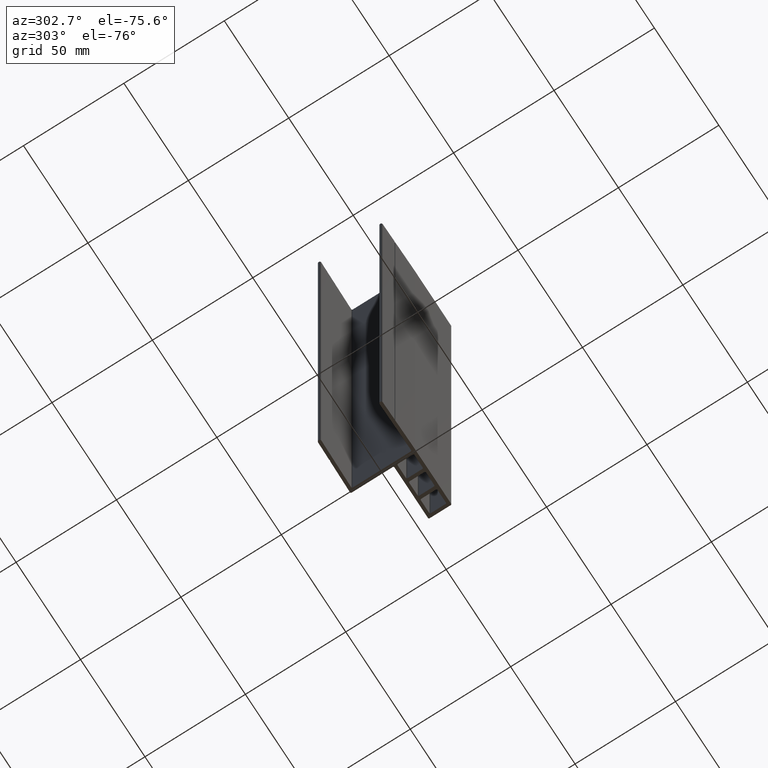
[diagram: clean part render]
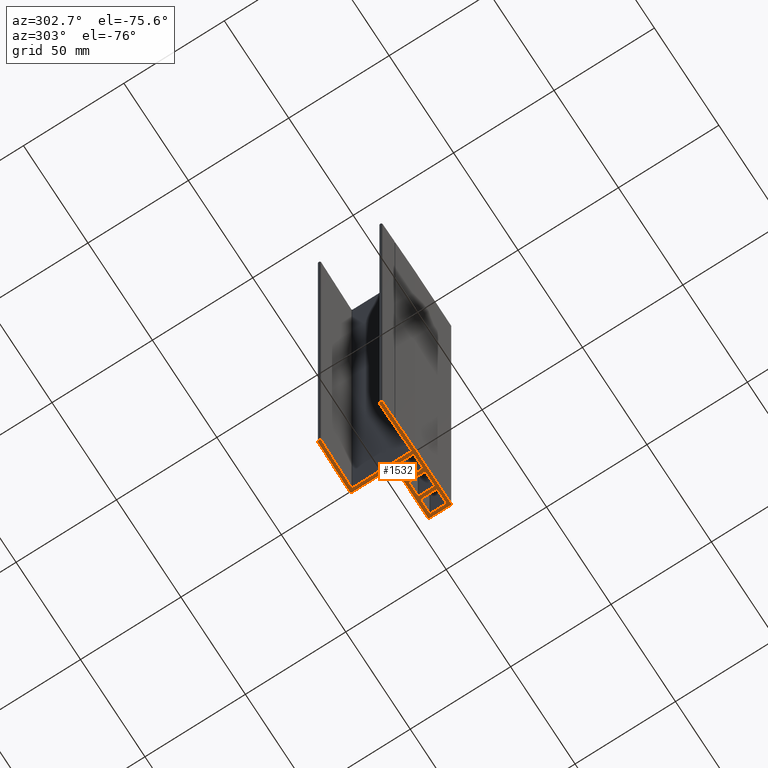
[diagram: same view with one face highlighted and labeled with its STEP entity id]
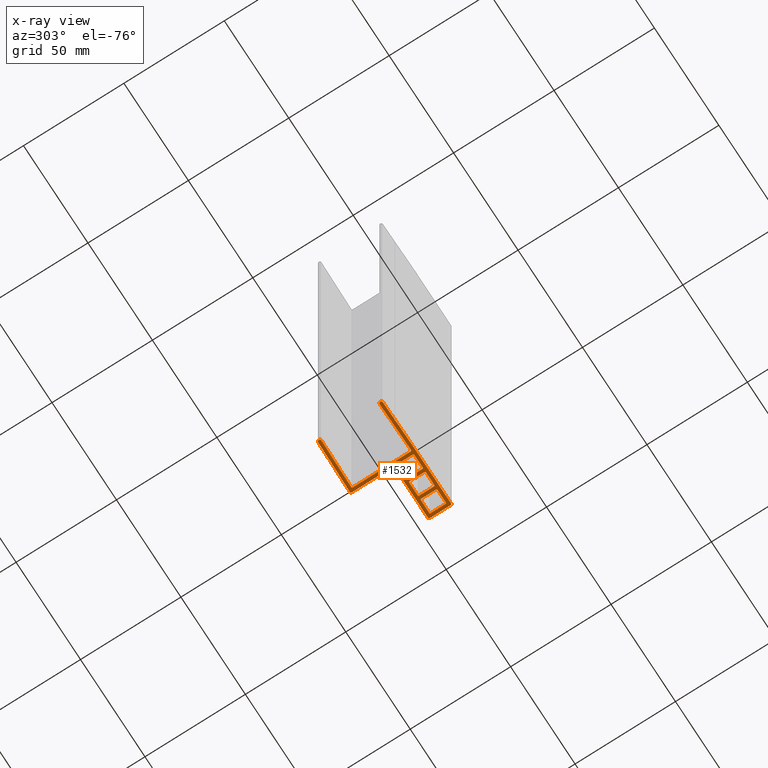
[diagram: x-ray of the same camera — body ghosted, the highlighted face saturated]
A machine part, auxiliary view. The second image highlights one B-rep face of the part: STEP entity #1532.
The next image is the same camera in x-ray: the body ghosted, the highlighted face saturated — about 0% of this face is hidden behind the body in this view.
In plain terms, the highlighted planar face has unit normal (-0, 0, -1).
Its self-contained STEP definition (entity closure, byte-faithful):
#4 = AXIS2_PLACEMENT_3D ( 'NONE', #1460, #150, #642 ) ;
#7 = CARTESIAN_POINT ( 'NONE',  ( -15.28087924239067300, -16.25591553212179000, -150.0000000000000000 ) ) ;
#18 = DIRECTION ( 'NONE',  ( -0.7238706650599833200, -0.6899356928479765100, 0.0000000000000000000 ) ) ;
#20 = CARTESIAN_POINT ( 'NONE',  ( -15.28087924239068400, 16.25591553212178700, -150.0000000000000000 ) ) ;
#24 = AXIS2_PLACEMENT_3D ( 'NONE', #1817, #1814, #1812 ) ;
#25 = LINE ( 'NONE', #55, #900 ) ;
#26 = CIRCLE ( 'NONE', #664, 0.7999999999999986000 ) ;
#27 = ORIENTED_EDGE ( 'NONE', *, *, #392, .T. ) ;
#28 = EDGE_CURVE ( 'NONE', #1199, #674, #328, .T. ) ;
#37 = LINE ( 'NONE', #1242, #842 ) ;
#42 = ORIENTED_EDGE ( 'NONE', *, *, #1365, .F. ) ;
#49 = AXIS2_PLACEMENT_3D ( 'NONE', #1520, #1514, #1507 ) ;
#52 = AXIS2_PLACEMENT_3D ( 'NONE', #119, #100, #138 ) ;
#54 = VERTEX_POINT ( 'NONE', #432 ) ;
#55 = CARTESIAN_POINT ( 'NONE',  ( -24.22570238034338500, -16.11279836191450700, -150.0000000000000000 ) ) ;
#57 = AXIS2_PLACEMENT_3D ( 'NONE', #1881, #1669, #1641 ) ;
#60 = VECTOR ( 'NONE', #879, 1000.000000000000000 ) ;
#62 = VECTOR ( 'NONE', #18, 1000.000000000000000 ) ;
#70 = DIRECTION ( 'NONE',  ( 0.9998720245707583000, -0.01599795239313189100, 0.0000000000000000000 ) ) ;
#69 = CIRCLE ( 'NONE', #1624, 0.4999999999999991700 ) ;
#89 = FACE_BOUND ( 'NONE', #1643, .T. ) ;
#91 = CARTESIAN_POINT ( 'NONE',  ( -25.01279836191450200, -15.29989761965661000, -150.0000000000000000 ) ) ;
#94 = AXIS2_PLACEMENT_3D ( 'NONE', #871, #852, #244 ) ;
#100 = DIRECTION ( 'NONE',  ( -0.0000000000000000000, -0.0000000000000000000, -1.000000000000000000 ) ) ;
#105 = VERTEX_POINT ( 'NONE', #116 ) ;
#116 = CARTESIAN_POINT ( 'NONE',  ( -14.78087924239068400, 16.26391553212179300, -150.0000000000000000 ) ) ;
#119 = CARTESIAN_POINT ( 'NONE',  ( -0.5000000000000053300, 14.39193600409547700, -150.0000000000000000 ) ) ;
#128 = LINE ( 'NONE', #1201, #681 ) ;
#133 = VERTEX_POINT ( 'NONE', #424 ) ;
#134 = EDGE_CURVE ( 'NONE', #272, #54, #180, .T. ) ;
#136 = VECTOR ( 'NONE', #310, 1000.000000000000000 ) ;
#137 = ORIENTED_EDGE ( 'NONE', *, *, #1631, .F. ) ;
#138 = DIRECTION ( 'NONE',  ( 1.000000000000000000, 0.0000000000000000000, 0.0000000000000000000 ) ) ;
#150 = DIRECTION ( 'NONE',  ( 0.0000000000000000000, 0.0000000000000000000, 1.000000000000000000 ) ) ;
#151 = ORIENTED_EDGE ( 'NONE', *, *, #1057, .T. ) ;
#154 = LINE ( 'NONE', #91, #1637 ) ;
#156 = VECTOR ( 'NONE', #1405, 1000.000000000000100 ) ;
#157 = CIRCLE ( 'NONE', #1810, 0.5000000000000004400 ) ;
#162 = VERTEX_POINT ( 'NONE', #371 ) ;
#163 = ORIENTED_EDGE ( 'NONE', *, *, #1060, .T. ) ;
#164 = DIRECTION ( 'NONE',  ( -0.01599795238717016300, -0.9998720245708536700, 0.0000000000000000000 ) ) ;
#170 = AXIS2_PLACEMENT_3D ( 'NONE', #1134, #1117, #1102 ) ;
#172 = DIRECTION ( 'NONE',  ( -0.9998720245707583000, 0.01599795239313208500, 0.0000000000000000000 ) ) ;
#175 = CARTESIAN_POINT ( 'NONE',  ( -0.5079989761965659800, -14.89187201638085500, -150.0000000000000000 ) ) ;
#180 = CIRCLE ( 'NONE', #784, 0.5000000000000004400 ) ;
#182 = CARTESIAN_POINT ( 'NONE',  ( -25.01290401842889100, 15.31290074225789500, -150.0000000000000000 ) ) ;
#185 = CARTESIAN_POINT ( 'NONE',  ( 18.00000000000000000, -7.099999999999991700, -150.0000000000000000 ) ) ;
#189 = LINE ( 'NONE', #1865, #136 ) ;
#194 = LINE ( 'NONE', #840, #684 ) ;
#206 = CIRCLE ( 'NONE', #801, 0.4999999999999970000 ) ;
#213 = CARTESIAN_POINT ( 'NONE',  ( -15.28087924239068100, 16.25591553212179000, -150.0000000000000000 ) ) ;
#221 = EDGE_CURVE ( 'NONE', #162, #1653, #1306, .T. ) ;
#222 = CIRCLE ( 'NONE', #1868, 0.4999999999999970000 ) ;
#225 = VERTEX_POINT ( 'NONE', #1692 ) ;
#232 = CARTESIAN_POINT ( 'NONE',  ( -15.02288026619412500, -16.01001151778866900, -150.0000000000000000 ) ) ;
#237 = VERTEX_POINT ( 'NONE', #625 ) ;
#244 = DIRECTION ( 'NONE',  ( 1.000000000000000000, 0.0000000000000000000, 0.0000000000000000000 ) ) ;
#246 = EDGE_CURVE ( 'NONE', #1736, #1009, #206, .T. ) ;
#255 = CARTESIAN_POINT ( 'NONE',  ( -24.20010238034338800, -14.51279836191450900, -150.0000000000000000 ) ) ;
#258 = DIRECTION ( 'NONE',  ( -0.6899356928479695200, 0.7238706650599899800, 0.0000000000000000000 ) ) ;
#260 = LINE ( 'NONE', #1029, #1317 ) ;
#262 = DIRECTION ( 'NONE',  ( -0.0000000000000000000, -0.0000000000000000000, -1.000000000000000000 ) ) ;
#263 = DIRECTION ( 'NONE',  ( 1.000000000000000000, 0.0000000000000000000, 0.0000000000000000000 ) ) ;
#270 = LINE ( 'NONE', #7, #62 ) ;
#271 = CARTESIAN_POINT ( 'NONE',  ( 10.60000000000000000, -14.40040960000000000, -150.0000000000000000 ) ) ;
#272 = VERTEX_POINT ( 'NONE', #1501 ) ;
#275 = DIRECTION ( 'NONE',  ( 1.000000000000000000, 0.0000000000000000000, 0.0000000000000000000 ) ) ;
#278 = EDGE_CURVE ( 'NONE', #419, #1429, #1237, .T. ) ;
#283 = DIRECTION ( 'NONE',  ( 0.0000000000000000000, 0.0000000000000000000, 1.000000000000000000 ) ) ;
#287 = CARTESIAN_POINT ( 'NONE',  ( 28.10000000000000100, -16.00040959999999400, -150.0000000000000000 ) ) ;
#288 = VECTOR ( 'NONE', #172, 1000.000000000000100 ) ;
#289 = EDGE_CURVE ( 'NONE', #854, #375, #930, .T. ) ;
#293 = CARTESIAN_POINT ( 'NONE',  ( 0.0000000000000000000, -16.50040959999999400, -150.0000000000000000 ) ) ;
#295 = EDGE_CURVE ( 'NONE', #237, #886, #1529, .T. ) ;
#297 = VECTOR ( 'NONE', #1674, 1000.000000000000000 ) ;
#299 = DIRECTION ( 'NONE',  ( 0.7238706650599833200, -0.6899356928479765100, 0.0000000000000000000 ) ) ;
#303 = ORIENTED_EDGE ( 'NONE', *, *, #327, .F. ) ;
#309 = ORIENTED_EDGE ( 'NONE', *, *, #652, .F. ) ;
#310 = DIRECTION ( 'NONE',  ( 0.0000000000000000000, 1.000000000000000000, 0.0000000000000000000 ) ) ;
#316 = EDGE_CURVE ( 'NONE', #926, #662, #384, .T. ) ;
#320 = DIRECTION ( 'NONE',  ( 1.000000000000000000, 0.0000000000000000000, 0.0000000000000000000 ) ) ;
#321 = EDGE_CURVE ( 'NONE', #1712, #1682, #25, .T. ) ;
#323 = CARTESIAN_POINT ( 'NONE',  ( -5.227150007098417100E-015, 14.39193600409547700, -150.0000000000000000 ) ) ;
#324 = DIRECTION ( 'NONE',  ( 0.0000000000000000000, 0.0000000000000000000, 1.000000000000000000 ) ) ;
#325 = CARTESIAN_POINT ( 'NONE',  ( 17.50000000000000000, -14.40040960000000000, -150.0000000000000000 ) ) ;
#326 = VECTOR ( 'NONE', #1727, 1000.000000000000000 ) ;
#327 = EDGE_CURVE ( 'NONE', #1042, #1248, #154, .T. ) ;
#328 = LINE ( 'NONE', #175, #288 ) ;
#329 = EDGE_CURVE ( 'NONE', #1230, #336, #429, .T. ) ;
#336 = VERTEX_POINT ( 'NONE', #1267 ) ;
#345 = VECTOR ( 'NONE', #669, 1000.000000000000100 ) ;
#346 = EDGE_CURVE ( 'NONE', #1763, #1679, #189, .T. ) ;
#371 = CARTESIAN_POINT ( 'NONE',  ( 8.500000000000000000, -6.599999999999992500, -150.0000000000000000 ) ) ;
#375 = VERTEX_POINT ( 'NONE', #1687 ) ;
#384 = CIRCLE ( 'NONE', #52, 0.4999999999999997800 ) ;
#387 = EDGE_CURVE ( 'NONE', #1009, #1438, #1652, .T. ) ;
#391 = VERTEX_POINT ( 'NONE', #1597 ) ;
#392 = EDGE_CURVE ( 'NONE', #1801, #532, #1418, .T. ) ;
#400 = ORIENTED_EDGE ( 'NONE', *, *, #295, .T. ) ;
#401 = VECTOR ( 'NONE', #1121, 1000.000000000000000 ) ;
#403 = CARTESIAN_POINT ( 'NONE',  ( 2.100000000000000100, -6.599999999999999600, -150.0000000000000000 ) ) ;
#405 = EDGE_CURVE ( 'NONE', #1248, #1386, #26, .T. ) ;
#417 = EDGE_CURVE ( 'NONE', #1505, #105, #1639, .T. ) ;
#419 = VERTEX_POINT ( 'NONE', #1373 ) ;
#424 = CARTESIAN_POINT ( 'NONE',  ( -14.78087924239067900, -16.26391553212174700, -150.0000000000000000 ) ) ;
#426 = EDGE_CURVE ( 'NONE', #391, #419, #222, .T. ) ;
#427 = EDGE_LOOP ( 'NONE', ( #672, #1420, #1578, #1726, #1855, #1058, #1768, #491 ) ) ;
#429 = CIRCLE ( 'NONE', #57, 0.5000000000000002200 ) ;
#432 = CARTESIAN_POINT ( 'NONE',  ( 18.00000000000000400, -14.40040960000000000, -150.0000000000000000 ) ) ;
#448 = LINE ( 'NONE', #213, #1560 ) ;
#451 = ORIENTED_EDGE ( 'NONE', *, *, #1480, .T. ) ;
#462 = ORIENTED_EDGE ( 'NONE', *, *, #1536, .T. ) ;
#475 = VERTEX_POINT ( 'NONE', #1209 ) ;
#481 = ORIENTED_EDGE ( 'NONE', *, *, #954, .T. ) ;
#485 = CARTESIAN_POINT ( 'NONE',  ( 28.10000000000000100, -16.50040959999999400, -150.0000000000000000 ) ) ;
#491 = ORIENTED_EDGE ( 'NONE', *, *, #761, .T. ) ;
#510 = CIRCLE ( 'NONE', #1876, 0.5000000000000004400 ) ;
#513 = CARTESIAN_POINT ( 'NONE',  ( 1.599999999999999000, 16.01794560409558700, -150.0000000000000000 ) ) ;
#515 = CIRCLE ( 'NONE', #809, 0.7999999999999986000 ) ;
#517 = DIRECTION ( 'NONE',  ( 1.000000000000000000, 0.0000000000000000000, 0.0000000000000000000 ) ) ;
#524 = DIRECTION ( 'NONE',  ( 0.0000000000000000000, 0.0000000000000000000, 1.000000000000000000 ) ) ;
#530 = EDGE_CURVE ( 'NONE', #662, #225, #1488, .T. ) ;
#531 = CARTESIAN_POINT ( 'NONE',  ( -24.21290074225789700, -15.31269598157111400, -150.0000000000000000 ) ) ;
#532 = VERTEX_POINT ( 'NONE', #718 ) ;
#536 = ORIENTED_EDGE ( 'NONE', *, *, #561, .F. ) ;
#545 = ORIENTED_EDGE ( 'NONE', *, *, #1698, .T. ) ;
#550 = CIRCLE ( 'NONE', #1795, 0.5000000000000000000 ) ;
#555 = FACE_BOUND ( 'NONE', #427, .T. ) ;
#561 = EDGE_CURVE ( 'NONE', #674, #1042, #515, .T. ) ;
#566 = FACE_BOUND ( 'NONE', #1145, .T. ) ;
#579 = CARTESIAN_POINT ( 'NONE',  ( 20.10000000000000100, -6.599999999999992500, -150.0000000000000000 ) ) ;
#580 = DIRECTION ( 'NONE',  ( 1.000000000000000000, 0.0000000000000000000, 0.0000000000000000000 ) ) ;
#581 = ORIENTED_EDGE ( 'NONE', *, *, #28, .F. ) ;
#598 = ORIENTED_EDGE ( 'NONE', *, *, #856, .F. ) ;
#601 = VECTOR ( 'NONE', #1569, 1000.000000000000100 ) ;
#604 = VERTEX_POINT ( 'NONE', #513 ) ;
#605 = ORIENTED_EDGE ( 'NONE', *, *, #1051, .F. ) ;
#615 = VERTEX_POINT ( 'NONE', #485 ) ;
#618 = ORIENTED_EDGE ( 'NONE', *, *, #1623, .T. ) ;
#625 = CARTESIAN_POINT ( 'NONE',  ( 26.50000000000000000, -14.90040959999999400, -150.0000000000000000 ) ) ;
#635 = VECTOR ( 'NONE', #263, 1000.000000000000000 ) ;
#640 = LINE ( 'NONE', #1854, #961 ) ;
#641 = CARTESIAN_POINT ( 'NONE',  ( 1.600000000000000100, -7.100000000000000500, -150.0000000000000000 ) ) ;
#642 = DIRECTION ( 'NONE',  ( 1.000000000000000000, 0.0000000000000000000, 0.0000000000000000000 ) ) ;
#652 = EDGE_CURVE ( 'NONE', #615, #1040, #1459, .T. ) ;
#656 = CIRCLE ( 'NONE', #4, 0.7999999999999986000 ) ;
#657 = EDGE_CURVE ( 'NONE', #1192, #615, #1537, .T. ) ;
#660 = LINE ( 'NONE', #232, #790 ) ;
#662 = VERTEX_POINT ( 'NONE', #323 ) ;
#664 = AXIS2_PLACEMENT_3D ( 'NONE', #1434, #1431, #1427 ) ;
#667 = LINE ( 'NONE', #1082, #1380 ) ;
#669 = DIRECTION ( 'NONE',  ( 0.9998720245707583000, -0.01599795239313189100, 0.0000000000000000000 ) ) ;
#672 = ORIENTED_EDGE ( 'NONE', *, *, #346, .T. ) ;
#674 = VERTEX_POINT ( 'NONE', #255 ) ;
#679 = EDGE_CURVE ( 'NONE', #736, #1156, #448, .T. ) ;
#681 = VECTOR ( 'NONE', #1173, 1000.000000000000000 ) ;
#684 = VECTOR ( 'NONE', #835, 1000.000000000000000 ) ;
#685 = CARTESIAN_POINT ( 'NONE',  ( -24.22570238034338500, -16.11279836191450700, -150.0000000000000000 ) ) ;
#688 = ORIENTED_EDGE ( 'NONE', *, *, #919, .T. ) ;
#693 = DIRECTION ( 'NONE',  ( -1.000000000000000000, 0.0000000000000000000, 0.0000000000000000000 ) ) ;
#718 = CARTESIAN_POINT ( 'NONE',  ( 10.60000000000000000, -7.099999999999991700, -150.0000000000000000 ) ) ;
#719 = DIRECTION ( 'NONE',  ( 1.000000000000000000, 0.0000000000000000000, 0.0000000000000000000 ) ) ;
#722 = DIRECTION ( 'NONE',  ( 0.0000000000000000000, 0.0000000000000000000, 1.000000000000000000 ) ) ;
#725 = EDGE_CURVE ( 'NONE', #1589, #1682, #270, .T. ) ;
#726 = CARTESIAN_POINT ( 'NONE',  ( 1.099999999999999900, 16.01794560409559100, -150.0000000000000000 ) ) ;
#728 = EDGE_CURVE ( 'NONE', #1386, #1712, #656, .T. ) ;
#736 = VERTEX_POINT ( 'NONE', #20 ) ;
#747 = CARTESIAN_POINT ( 'NONE',  ( 8.500000000000000000, -14.90040960000000100, -150.0000000000000000 ) ) ;
#758 = VERTEX_POINT ( 'NONE', #182 ) ;
#761 = EDGE_CURVE ( 'NONE', #1838, #1763, #157, .T. ) ;
#765 = CARTESIAN_POINT ( 'NONE',  ( 6.036150118630527200E-017, -14.39193600409547700, -150.0000000000000000 ) ) ;
#772 = DIRECTION ( 'NONE',  ( -1.000000000000000000, 0.0000000000000000000, 0.0000000000000000000 ) ) ;
#773 = DIRECTION ( 'NONE',  ( 0.0000000000000000000, 0.0000000000000000000, 1.000000000000000000 ) ) ;
#776 = CARTESIAN_POINT ( 'NONE',  ( 2.100000000000000100, -7.100000000000000500, -150.0000000000000000 ) ) ;
#779 = CARTESIAN_POINT ( 'NONE',  ( 11.10000000000000000, -6.599999999999990800, -150.0000000000000000 ) ) ;
#783 = DIRECTION ( 'NONE',  ( 1.836970198721029900E-016, -1.000000000000000000, -0.0000000000000000000 ) ) ;
#784 = AXIS2_PLACEMENT_3D ( 'NONE', #325, #324, #320 ) ;
#787 = LINE ( 'NONE', #817, #1350 ) ;
#790 = VECTOR ( 'NONE', #258, 1000.000000000000000 ) ;
#793 = ORIENTED_EDGE ( 'NONE', *, *, #134, .T. ) ;
#797 = LINE ( 'NONE', #1492, #1710 ) ;
#801 = AXIS2_PLACEMENT_3D ( 'NONE', #1442, #1773, #1331 ) ;
#804 = DIRECTION ( 'NONE',  ( -4.752400402237171100E-016, 1.000000000000000000, -0.0000000000000000000 ) ) ;
#807 = CARTESIAN_POINT ( 'NONE',  ( 9.000000000000001800, -14.40040960000000000, -150.0000000000000000 ) ) ;
#809 = AXIS2_PLACEMENT_3D ( 'NONE', #531, #524, #517 ) ;
#815 = EDGE_CURVE ( 'NONE', #133, #1589, #660, .T. ) ;
#816 = VERTEX_POINT ( 'NONE', #271 ) ;
#817 = CARTESIAN_POINT ( 'NONE',  ( 18.00000000000000000, -7.099999999999991700, -150.0000000000000000 ) ) ;
#829 = LINE ( 'NONE', #1437, #1186 ) ;
#834 = LINE ( 'NONE', #1671, #297 ) ;
#835 = DIRECTION ( 'NONE',  ( 0.01599795238676366900, -0.9998720245708601100, -0.0000000000000000000 ) ) ;
#840 = CARTESIAN_POINT ( 'NONE',  ( -25.01279836191450900, 15.29989761965660100, -150.0000000000000000 ) ) ;
#842 = VECTOR ( 'NONE', #1303, 1000.000000000000100 ) ;
#843 = CARTESIAN_POINT ( 'NONE',  ( 28.59999999999999800, -5.500000000000000000, -150.0000000000000000 ) ) ;
#846 = CARTESIAN_POINT ( 'NONE',  ( -24.22570238034338500, -16.11279836191450700, -150.0000000000000000 ) ) ;
#851 = DIRECTION ( 'NONE',  ( 1.000000000000000000, 0.0000000000000000000, 0.0000000000000000000 ) ) ;
#852 = DIRECTION ( 'NONE',  ( 0.0000000000000000000, 0.0000000000000000000, 1.000000000000000000 ) ) ;
#853 = DIRECTION ( 'NONE',  ( 0.0000000000000000000, 0.0000000000000000000, 1.000000000000000000 ) ) ;
#854 = VERTEX_POINT ( 'NONE', #185 ) ;
#856 = EDGE_CURVE ( 'NONE', #225, #1199, #1581, .T. ) ;
#857 = CARTESIAN_POINT ( 'NONE',  ( 11.10000000000000000, -14.40040960000000000, -150.0000000000000000 ) ) ;
#862 = ORIENTED_EDGE ( 'NONE', *, *, #1861, .F. ) ;
#869 = LINE ( 'NONE', #1680, #996 ) ;
#871 = CARTESIAN_POINT ( 'NONE',  ( 26.50000000000000000, -14.40040959999999400, -150.0000000000000000 ) ) ;
#879 = DIRECTION ( 'NONE',  ( 0.0000000000000000000, 1.000000000000000000, 0.0000000000000000000 ) ) ;
#886 = VERTEX_POINT ( 'NONE', #1888 ) ;
#887 = CARTESIAN_POINT ( 'NONE',  ( -15.28087924239067300, -16.25591553212174700, -150.0000000000000000 ) ) ;
#893 = CARTESIAN_POINT ( 'NONE',  ( 9.000000000000001800, -7.099999999999991700, -150.0000000000000000 ) ) ;
#900 = VECTOR ( 'NONE', #70, 1000.000000000000100 ) ;
#903 = CARTESIAN_POINT ( 'NONE',  ( 1.600000000000000100, -4.500000000000003600, -150.0000000000000000 ) ) ;
#908 = LINE ( 'NONE', #1713, #1735 ) ;
#919 = EDGE_CURVE ( 'NONE', #1540, #237, #640, .T. ) ;
#926 = VERTEX_POINT ( 'NONE', #1848 ) ;
#930 = CIRCLE ( 'NONE', #170, 0.5000000000000004400 ) ;
#943 = LINE ( 'NONE', #1590, #601 ) ;
#951 = CARTESIAN_POINT ( 'NONE',  ( 19.59999999999999800, -7.099999999999990800, -150.0000000000000000 ) ) ;
#954 = EDGE_CURVE ( 'NONE', #1429, #1656, #1684, .T. ) ;
#957 = CARTESIAN_POINT ( 'NONE',  ( 2.100000000000000100, -6.599999999999999600, -150.0000000000000000 ) ) ;
#959 = ORIENTED_EDGE ( 'NONE', *, *, #278, .T. ) ;
#961 = VECTOR ( 'NONE', #1857, 1000.000000000000000 ) ;
#965 = CIRCLE ( 'NONE', #1803, 0.5000000000000004400 ) ;
#973 = LINE ( 'NONE', #1128, #401 ) ;
#980 = ORIENTED_EDGE ( 'NONE', *, *, #657, .F. ) ;
#984 = DIRECTION ( 'NONE',  ( 1.000000000000000000, 0.0000000000000000000, 0.0000000000000000000 ) ) ;
#987 = DIRECTION ( 'NONE',  ( 0.0000000000000000000, 0.0000000000000000000, 1.000000000000000000 ) ) ;
#988 = CARTESIAN_POINT ( 'NONE',  ( -24.21290401842889000, 15.31290074225789500, -150.0000000000000000 ) ) ;
#995 = DIRECTION ( 'NONE',  ( 0.0000000000000000000, -1.000000000000000000, 0.0000000000000000000 ) ) ;
#996 = VECTOR ( 'NONE', #1666, 1000.000000000000000 ) ;
#1008 = CIRCLE ( 'NONE', #1728, 0.7999999999999986000 ) ;
#1009 = VERTEX_POINT ( 'NONE', #1794 ) ;
#1019 = VECTOR ( 'NONE', #783, 1000.000000000000000 ) ;
#1024 = ORIENTED_EDGE ( 'NONE', *, *, #1395, .F. ) ;
#1029 = CARTESIAN_POINT ( 'NONE',  ( 19.59999999999999800, -7.099999999999990800, -150.0000000000000000 ) ) ;
#1033 = CARTESIAN_POINT ( 'NONE',  ( -15.02288026619412700, -16.01001151778866900, -150.0000000000000000 ) ) ;
#1039 = CARTESIAN_POINT ( 'NONE',  ( -24.22570238034339200, 16.11279836191450300, -150.0000000000000000 ) ) ;
#1040 = VERTEX_POINT ( 'NONE', #1705 ) ;
#1042 = VERTEX_POINT ( 'NONE', #1688 ) ;
#1051 = EDGE_CURVE ( 'NONE', #1040, #1736, #869, .T. ) ;
#1057 = EDGE_CURVE ( 'NONE', #1361, #272, #834, .T. ) ;
#1058 = ORIENTED_EDGE ( 'NONE', *, *, #329, .T. ) ;
#1060 = EDGE_CURVE ( 'NONE', #1156, #105, #908, .T. ) ;
#1066 = EDGE_CURVE ( 'NONE', #1679, #162, #510, .T. ) ;
#1070 = DIRECTION ( 'NONE',  ( -1.000000000000000000, -1.219727444046192500E-015, -0.0000000000000000000 ) ) ;
#1072 = ORIENTED_EDGE ( 'NONE', *, *, #246, .F. ) ;
#1075 = EDGE_CURVE ( 'NONE', #1582, #758, #1676, .T. ) ;
#1077 = CARTESIAN_POINT ( 'NONE',  ( 20.10000000000000100, -14.90040960000000100, -150.0000000000000000 ) ) ;
#1082 = CARTESIAN_POINT ( 'NONE',  ( 10.60000000000000000, -7.099999999999991700, -150.0000000000000000 ) ) ;
#1086 = DIRECTION ( 'NONE',  ( -1.000000000000000000, 0.0000000000000000000, 0.0000000000000000000 ) ) ;
#1091 = CARTESIAN_POINT ( 'NONE',  ( 2.100000000000000100, -4.500000000000003600, -150.0000000000000000 ) ) ;
#1092 = DIRECTION ( 'NONE',  ( -2.376200201118585500E-016, -1.000000000000000000, 0.0000000000000000000 ) ) ;
#1093 = PLANE ( 'NONE',  #1744 ) ;
#1097 = ORIENTED_EDGE ( 'NONE', *, *, #530, .F. ) ;
#1099 = DIRECTION ( 'NONE',  ( -0.0000000000000000000, 0.0000000000000000000, -1.000000000000000000 ) ) ;
#1102 = DIRECTION ( 'NONE',  ( -1.000000000000000000, 0.0000000000000000000, 0.0000000000000000000 ) ) ;
#1107 = ORIENTED_EDGE ( 'NONE', *, *, #1737, .F. ) ;
#1112 = CARTESIAN_POINT ( 'NONE',  ( -25.01279836191450900, 15.29989761965660100, -150.0000000000000000 ) ) ;
#1117 = DIRECTION ( 'NONE',  ( 0.0000000000000000000, 0.0000000000000000000, 1.000000000000000000 ) ) ;
#1121 = DIRECTION ( 'NONE',  ( -9.504800804474361900E-016, 1.000000000000000000, -0.0000000000000000000 ) ) ;
#1127 = EDGE_CURVE ( 'NONE', #736, #1582, #943, .T. ) ;
#1128 = CARTESIAN_POINT ( 'NONE',  ( 26.99999999999999600, -7.100000000000000500, -150.0000000000000000 ) ) ;
#1129 = ORIENTED_EDGE ( 'NONE', *, *, #1685, .F. ) ;
#1134 = CARTESIAN_POINT ( 'NONE',  ( 17.49999999999999600, -7.099999999999991700, -150.0000000000000000 ) ) ;
#1137 = ORIENTED_EDGE ( 'NONE', *, *, #1075, .F. ) ;
#1142 = CARTESIAN_POINT ( 'NONE',  ( 1.092001023803433900, 16.51788161638096900, -150.0000000000000000 ) ) ;
#1145 = EDGE_LOOP ( 'NONE', ( #451, #1191, #959, #481, #618, #1699, #688, #400 ) ) ;
#1147 = CIRCLE ( 'NONE', #1770, 0.8000000000000020400 ) ;
#1149 = ORIENTED_EDGE ( 'NONE', *, *, #316, .F. ) ;
#1156 = VERTEX_POINT ( 'NONE', #1557 ) ;
#1158 = VERTEX_POINT ( 'NONE', #1556 ) ;
#1168 = EDGE_CURVE ( 'NONE', #1896, #1230, #797, .T. ) ;
#1173 = DIRECTION ( 'NONE',  ( 1.000000000000000000, -5.421010862427522200E-016, 0.0000000000000000000 ) ) ;
#1178 = ORIENTED_EDGE ( 'NONE', *, *, #679, .T. ) ;
#1179 = DIRECTION ( 'NONE',  ( -1.000000000000000000, 0.0000000000000000000, 0.0000000000000000000 ) ) ;
#1182 = DIRECTION ( 'NONE',  ( 0.0000000000000000000, 0.0000000000000000000, 1.000000000000000000 ) ) ;
#1186 = VECTOR ( 'NONE', #1422, 1000.000000000000000 ) ;
#1187 = CARTESIAN_POINT ( 'NONE',  ( -24.21290074225790100, 15.31269598157111400, -150.0000000000000000 ) ) ;
#1191 = ORIENTED_EDGE ( 'NONE', *, *, #426, .T. ) ;
#1192 = VERTEX_POINT ( 'NONE', #1447 ) ;
#1194 = CARTESIAN_POINT ( 'NONE',  ( 20.10000000000000100, -6.599999999999992500, -150.0000000000000000 ) ) ;
#1195 = CIRCLE ( 'NONE', #1700, 0.5000000000000004400 ) ;
#1199 = VERTEX_POINT ( 'NONE', #1433 ) ;
#1201 = CARTESIAN_POINT ( 'NONE',  ( 2.100000000000000100, -14.90040959999999800, -150.0000000000000000 ) ) ;
#1204 = CARTESIAN_POINT ( 'NONE',  ( 2.100000000000000100, -5.000000000000002700, -150.0000000000000000 ) ) ;
#1207 = ORIENTED_EDGE ( 'NONE', *, *, #405, .F. ) ;
#1208 = CARTESIAN_POINT ( 'NONE',  ( -25.01290401842888800, -15.31290074225789900, -150.0000000000000000 ) ) ;
#1209 = CARTESIAN_POINT ( 'NONE',  ( -25.01280163808549500, 15.30010238034338800, -150.0000000000000000 ) ) ;
#1210 = VERTEX_POINT ( 'NONE', #1477 ) ;
#1213 = EDGE_CURVE ( 'NONE', #375, #1801, #829, .T. ) ;
#1215 = EDGE_LOOP ( 'NONE', ( #1543, #1524, #1592, #1207, #303, #536, #581, #598, #1097, #1149, #42, #1024, #1107, #137, #1137, #1445, #1178, #163, #1587, #1424, #1129, #1604, #1292, #1072, #605, #309, #980, #862, #1719 ) ) ;
#1227 = EDGE_CURVE ( 'NONE', #1298, #1540, #965, .T. ) ;
#1229 = CARTESIAN_POINT ( 'NONE',  ( 8.500000000000000000, -14.40040960000000000, -150.0000000000000000 ) ) ;
#1230 = VERTEX_POINT ( 'NONE', #1416 ) ;
#1237 = LINE ( 'NONE', #579, #326 ) ;
#1242 = CARTESIAN_POINT ( 'NONE',  ( -0.5079989761965714200, 14.89187201638085500, -150.0000000000000000 ) ) ;
#1248 = VERTEX_POINT ( 'NONE', #1411 ) ;
#1250 = DIRECTION ( 'NONE',  ( -1.000000000000000000, 0.0000000000000000000, 0.0000000000000000000 ) ) ;
#1257 = DIRECTION ( 'NONE',  ( -0.0000000000000000000, -0.0000000000000000000, -1.000000000000000000 ) ) ;
#1260 = CARTESIAN_POINT ( 'NONE',  ( 2.100000000000000100, -4.500000000000003600, -150.0000000000000000 ) ) ;
#1264 = LINE ( 'NONE', #903, #60 ) ;
#1267 = CARTESIAN_POINT ( 'NONE',  ( 2.100000000000000100, -14.90040959999999800, -150.0000000000000000 ) ) ;
#1272 = DIRECTION ( 'NONE',  ( -1.000000000000000000, 0.0000000000000000000, 0.0000000000000000000 ) ) ;
#1274 = DIRECTION ( 'NONE',  ( 0.0000000000000000000, 0.0000000000000000000, 1.000000000000000000 ) ) ;
#1275 = CARTESIAN_POINT ( 'NONE',  ( 11.10000000000000000, -14.90040960000000000, -150.0000000000000000 ) ) ;
#1280 = CARTESIAN_POINT ( 'NONE',  ( 26.50000000000000000, -7.100000000000000500, -150.0000000000000000 ) ) ;
#1292 = ORIENTED_EDGE ( 'NONE', *, *, #387, .F. ) ;
#1298 = VERTEX_POINT ( 'NONE', #1333 ) ;
#1303 = DIRECTION ( 'NONE',  ( 0.9998720245707583000, 0.01599795239313215800, -0.0000000000000000000 ) ) ;
#1306 = LINE ( 'NONE', #403, #1883 ) ;
#1317 = VECTOR ( 'NONE', #995, 1000.000000000000000 ) ;
#1331 = DIRECTION ( 'NONE',  ( 1.000000000000000000, 0.0000000000000000000, 0.0000000000000000000 ) ) ;
#1333 = CARTESIAN_POINT ( 'NONE',  ( 19.59999999999999800, -14.40040960000000000, -150.0000000000000000 ) ) ;
#1338 = CARTESIAN_POINT ( 'NONE',  ( -0.5000000000000000000, -14.39193600409547700, -150.0000000000000000 ) ) ;
#1349 = EDGE_CURVE ( 'NONE', #1438, #1210, #550, .T. ) ;
#1350 = VECTOR ( 'NONE', #804, 1000.000000000000000 ) ;
#1361 = VERTEX_POINT ( 'NONE', #1275 ) ;
#1365 = EDGE_CURVE ( 'NONE', #1158, #926, #37, .T. ) ;
#1373 = CARTESIAN_POINT ( 'NONE',  ( 26.50000000000000000, -6.600000000000001400, -150.0000000000000000 ) ) ;
#1375 = CIRCLE ( 'NONE', #1655, 0.5000000000000002200 ) ;
#1380 = VECTOR ( 'NONE', #1092, 1000.000000000000000 ) ;
#1386 = VERTEX_POINT ( 'NONE', #1208 ) ;
#1395 = EDGE_CURVE ( 'NONE', #1494, #1158, #1147, .T. ) ;
#1399 = AXIS2_PLACEMENT_3D ( 'NONE', #1338, #262, #693 ) ;
#1400 = DIRECTION ( 'NONE',  ( 1.000000000000000000, 0.0000000000000000000, 0.0000000000000000000 ) ) ;
#1401 = DIRECTION ( 'NONE',  ( 0.0000000000000000000, 0.0000000000000000000, 1.000000000000000000 ) ) ;
#1402 = CARTESIAN_POINT ( 'NONE',  ( 20.10000000000000100, -14.40040960000000000, -150.0000000000000000 ) ) ;
#1405 = DIRECTION ( 'NONE',  ( -0.9998720245707581900, -0.01599795239313673100, 0.0000000000000000000 ) ) ;
#1411 = CARTESIAN_POINT ( 'NONE',  ( -25.01280163808549200, -15.30010238034339100, -150.0000000000000000 ) ) ;
#1416 = CARTESIAN_POINT ( 'NONE',  ( 1.600000000000000300, -14.40040959999999600, -150.0000000000000000 ) ) ;
#1418 = CIRCLE ( 'NONE', #49, 0.5000000000000004400 ) ;
#1420 = ORIENTED_EDGE ( 'NONE', *, *, #1066, .T. ) ;
#1421 = CARTESIAN_POINT ( 'NONE',  ( 1.092001023803433900, 16.51788161638096900, -150.0000000000000000 ) ) ;
#1422 = DIRECTION ( 'NONE',  ( -1.000000000000000000, 1.355252715606881000E-016, -0.0000000000000000000 ) ) ;
#1424 = ORIENTED_EDGE ( 'NONE', *, *, #1833, .F. ) ;
#1427 = DIRECTION ( 'NONE',  ( 1.000000000000000000, 0.0000000000000000000, 0.0000000000000000000 ) ) ;
#1429 = VERTEX_POINT ( 'NONE', #1194 ) ;
#1431 = DIRECTION ( 'NONE',  ( 0.0000000000000000000, 0.0000000000000000000, 1.000000000000000000 ) ) ;
#1432 = EDGE_CURVE ( 'NONE', #336, #1838, #128, .T. ) ;
#1433 = CARTESIAN_POINT ( 'NONE',  ( -0.5079989761965659800, -14.89187201638085500, -150.0000000000000000 ) ) ;
#1434 = CARTESIAN_POINT ( 'NONE',  ( -24.21290401842888700, -15.31290074225789900, -150.0000000000000000 ) ) ;
#1437 = CARTESIAN_POINT ( 'NONE',  ( 11.10000000000000000, -6.599999999999991700, -150.0000000000000000 ) ) ;
#1438 = VERTEX_POINT ( 'NONE', #1204 ) ;
#1442 = CARTESIAN_POINT ( 'NONE',  ( 28.10000000000000100, -5.500000000000000000, -150.0000000000000000 ) ) ;
#1445 = ORIENTED_EDGE ( 'NONE', *, *, #1127, .F. ) ;
#1447 = CARTESIAN_POINT ( 'NONE',  ( 0.0000000000000000000, -16.50040959999999400, -150.0000000000000000 ) ) ;
#1457 = ORIENTED_EDGE ( 'NONE', *, *, #289, .T. ) ;
#1459 = CIRCLE ( 'NONE', #1570, 0.5000000000000004400 ) ;
#1460 = CARTESIAN_POINT ( 'NONE',  ( -24.21290401842888700, -15.31290074225789900, -150.0000000000000000 ) ) ;
#1477 = CARTESIAN_POINT ( 'NONE',  ( 1.600000000000000100, -4.500000000000003600, -150.0000000000000000 ) ) ;
#1480 = EDGE_CURVE ( 'NONE', #886, #391, #973, .T. ) ;
#1488 = LINE ( 'NONE', #765, #1019 ) ;
#1490 = DIRECTION ( 'NONE',  ( -0.0000000000000000000, -1.000000000000000000, -0.0000000000000000000 ) ) ;
#1492 = CARTESIAN_POINT ( 'NONE',  ( 1.600000000000000300, -14.40040959999999600, -150.0000000000000000 ) ) ;
#1494 = VERTEX_POINT ( 'NONE', #1112 ) ;
#1501 = CARTESIAN_POINT ( 'NONE',  ( 17.50000000000000000, -14.90040960000000100, -150.0000000000000000 ) ) ;
#1505 = VERTEX_POINT ( 'NONE', #1142 ) ;
#1507 = DIRECTION ( 'NONE',  ( 1.000000000000000000, 0.0000000000000000000, 0.0000000000000000000 ) ) ;
#1514 = DIRECTION ( 'NONE',  ( 0.0000000000000000000, 0.0000000000000000000, 1.000000000000000000 ) ) ;
#1520 = CARTESIAN_POINT ( 'NONE',  ( 11.10000000000000000, -7.099999999999991700, -150.0000000000000000 ) ) ;
#1524 = ORIENTED_EDGE ( 'NONE', *, *, #321, .F. ) ;
#1529 = CIRCLE ( 'NONE', #94, 0.5000000000000038900 ) ;
#1532 = ADVANCED_FACE ( 'NONE', ( #1545, #555, #89, #566 ), #1093, .T. ) ;
#1536 = EDGE_CURVE ( 'NONE', #532, #816, #667, .T. ) ;
#1537 = LINE ( 'NONE', #293, #635 ) ;
#1540 = VERTEX_POINT ( 'NONE', #1077 ) ;
#1543 = ORIENTED_EDGE ( 'NONE', *, *, #725, .T. ) ;
#1545 = FACE_OUTER_BOUND ( 'NONE', #1215, .T. ) ;
#1556 = CARTESIAN_POINT ( 'NONE',  ( -24.20010238034338800, 14.51279836191450600, -150.0000000000000000 ) ) ;
#1557 = CARTESIAN_POINT ( 'NONE',  ( -15.02288026619413200, 16.01001151778866900, -150.0000000000000000 ) ) ;
#1560 = VECTOR ( 'NONE', #299, 1000.000000000000000 ) ;
#1569 = DIRECTION ( 'NONE',  ( -0.9998720245707581900, -0.01599795239313673100, 0.0000000000000000000 ) ) ;
#1570 = AXIS2_PLACEMENT_3D ( 'NONE', #287, #283, #275 ) ;
#1578 = ORIENTED_EDGE ( 'NONE', *, *, #221, .T. ) ;
#1581 = CIRCLE ( 'NONE', #1399, 0.4999999999999997800 ) ;
#1582 = VERTEX_POINT ( 'NONE', #1039 ) ;
#1587 = ORIENTED_EDGE ( 'NONE', *, *, #417, .F. ) ;
#1589 = VERTEX_POINT ( 'NONE', #1033 ) ;
#1590 = CARTESIAN_POINT ( 'NONE',  ( 1.092001023803433900, 16.51788161638096900, -150.0000000000000000 ) ) ;
#1592 = ORIENTED_EDGE ( 'NONE', *, *, #728, .F. ) ;
#1596 = DIRECTION ( 'NONE',  ( 1.000000000000000000, 0.0000000000000000000, 0.0000000000000000000 ) ) ;
#1597 = CARTESIAN_POINT ( 'NONE',  ( 26.99999999999999600, -7.100000000000000500, -150.0000000000000000 ) ) ;
#1598 = DIRECTION ( 'NONE',  ( 0.0000000000000000000, 0.0000000000000000000, 1.000000000000000000 ) ) ;
#1601 = CARTESIAN_POINT ( 'NONE',  ( -24.21290401842889000, 15.31290074225789500, -150.0000000000000000 ) ) ;
#1604 = ORIENTED_EDGE ( 'NONE', *, *, #1349, .F. ) ;
#1606 = CARTESIAN_POINT ( 'NONE',  ( 28.10000000000000100, -5.000000000000000000, -150.0000000000000000 ) ) ;
#1612 = DIRECTION ( 'NONE',  ( -1.000000000000000000, -1.000802005371235100E-016, 0.0000000000000000000 ) ) ;
#1623 = EDGE_CURVE ( 'NONE', #1656, #1298, #260, .T. ) ;
#1624 = AXIS2_PLACEMENT_3D ( 'NONE', #726, #722, #719 ) ;
#1631 = EDGE_CURVE ( 'NONE', #758, #475, #1008, .T. ) ;
#1632 = DIRECTION ( 'NONE',  ( -1.000000000000000000, 0.0000000000000000000, 0.0000000000000000000 ) ) ;
#1634 = DIRECTION ( 'NONE',  ( 0.0000000000000000000, 0.0000000000000000000, 1.000000000000000000 ) ) ;
#1637 = VECTOR ( 'NONE', #164, 1000.000000000000100 ) ;
#1639 = LINE ( 'NONE', #1421, #156 ) ;
#1640 = ORIENTED_EDGE ( 'NONE', *, *, #1213, .T. ) ;
#1641 = DIRECTION ( 'NONE',  ( -1.000000000000000000, 0.0000000000000000000, 0.0000000000000000000 ) ) ;
#1642 = CARTESIAN_POINT ( 'NONE',  ( 8.500000000000000000, -7.099999999999990800, -150.0000000000000000 ) ) ;
#1643 = EDGE_LOOP ( 'NONE', ( #1640, #27, #462, #545, #151, #793, #1779, #1457 ) ) ;
#1652 = LINE ( 'NONE', #1606, #1696 ) ;
#1653 = VERTEX_POINT ( 'NONE', #957 ) ;
#1655 = AXIS2_PLACEMENT_3D ( 'NONE', #776, #773, #772 ) ;
#1656 = VERTEX_POINT ( 'NONE', #951 ) ;
#1658 = DIRECTION ( 'NONE',  ( 0.6899356928479695200, 0.7238706650599899800, 0.0000000000000000000 ) ) ;
#1664 = LINE ( 'NONE', #685, #345 ) ;
#1666 = DIRECTION ( 'NONE',  ( -3.304106300723369800E-016, 1.000000000000000000, 0.0000000000000000000 ) ) ;
#1669 = DIRECTION ( 'NONE',  ( 0.0000000000000000000, 0.0000000000000000000, 1.000000000000000000 ) ) ;
#1671 = CARTESIAN_POINT ( 'NONE',  ( 11.10000000000000000, -14.90040960000000000, -150.0000000000000000 ) ) ;
#1674 = DIRECTION ( 'NONE',  ( 1.000000000000000000, 0.0000000000000000000, 0.0000000000000000000 ) ) ;
#1676 = CIRCLE ( 'NONE', #1882, 0.7999999999999986000 ) ;
#1679 = VERTEX_POINT ( 'NONE', #893 ) ;
#1680 = CARTESIAN_POINT ( 'NONE',  ( 28.60000000000000100, -16.00040959999999400, -150.0000000000000000 ) ) ;
#1682 = VERTEX_POINT ( 'NONE', #887 ) ;
#1684 = CIRCLE ( 'NONE', #24, 0.5000000000000004400 ) ;
#1685 = EDGE_CURVE ( 'NONE', #1210, #604, #1264, .T. ) ;
#1687 = CARTESIAN_POINT ( 'NONE',  ( 17.49999999999999600, -6.599999999999992500, -150.0000000000000000 ) ) ;
#1688 = CARTESIAN_POINT ( 'NONE',  ( -25.01279836191450200, -15.29989761965661000, -150.0000000000000000 ) ) ;
#1692 = CARTESIAN_POINT ( 'NONE',  ( -2.168404344971008900E-016, -14.39193600409547700, -150.0000000000000000 ) ) ;
#1696 = VECTOR ( 'NONE', #1612, 1000.000000000000000 ) ;
#1698 = EDGE_CURVE ( 'NONE', #816, #1361, #1195, .T. ) ;
#1699 = ORIENTED_EDGE ( 'NONE', *, *, #1227, .T. ) ;
#1700 = AXIS2_PLACEMENT_3D ( 'NONE', #857, #853, #851 ) ;
#1705 = CARTESIAN_POINT ( 'NONE',  ( 28.60000000000000100, -16.00040959999999400, -150.0000000000000000 ) ) ;
#1710 = VECTOR ( 'NONE', #1490, 1000.000000000000000 ) ;
#1712 = VERTEX_POINT ( 'NONE', #846 ) ;
#1713 = CARTESIAN_POINT ( 'NONE',  ( -15.02288026619413200, 16.01001151778866900, -150.0000000000000000 ) ) ;
#1719 = ORIENTED_EDGE ( 'NONE', *, *, #815, .T. ) ;
#1726 = ORIENTED_EDGE ( 'NONE', *, *, #1782, .T. ) ;
#1727 = DIRECTION ( 'NONE',  ( -1.000000000000000000, 1.490777987167569000E-015, -0.0000000000000000000 ) ) ;
#1728 = AXIS2_PLACEMENT_3D ( 'NONE', #988, #987, #984 ) ;
#1735 = VECTOR ( 'NONE', #1658, 1000.000000000000000 ) ;
#1736 = VERTEX_POINT ( 'NONE', #843 ) ;
#1737 = EDGE_CURVE ( 'NONE', #475, #1494, #194, .T. ) ;
#1744 = AXIS2_PLACEMENT_3D ( 'NONE', #1091, #1099, #1086 ) ;
#1763 = VERTEX_POINT ( 'NONE', #807 ) ;
#1764 = EDGE_CURVE ( 'NONE', #54, #854, #787, .T. ) ;
#1768 = ORIENTED_EDGE ( 'NONE', *, *, #1432, .T. ) ;
#1770 = AXIS2_PLACEMENT_3D ( 'NONE', #1187, #1182, #1179 ) ;
#1773 = DIRECTION ( 'NONE',  ( 0.0000000000000000000, 0.0000000000000000000, 1.000000000000000000 ) ) ;
#1779 = ORIENTED_EDGE ( 'NONE', *, *, #1764, .T. ) ;
#1782 = EDGE_CURVE ( 'NONE', #1653, #1896, #1375, .T. ) ;
#1794 = CARTESIAN_POINT ( 'NONE',  ( 28.10000000000000100, -5.000000000000000000, -150.0000000000000000 ) ) ;
#1795 = AXIS2_PLACEMENT_3D ( 'NONE', #1260, #1257, #1250 ) ;
#1801 = VERTEX_POINT ( 'NONE', #779 ) ;
#1803 = AXIS2_PLACEMENT_3D ( 'NONE', #1402, #1401, #1400 ) ;
#1810 = AXIS2_PLACEMENT_3D ( 'NONE', #1229, #1822, #580 ) ;
#1812 = DIRECTION ( 'NONE',  ( 1.000000000000000000, 0.0000000000000000000, 0.0000000000000000000 ) ) ;
#1814 = DIRECTION ( 'NONE',  ( 0.0000000000000000000, 0.0000000000000000000, 1.000000000000000000 ) ) ;
#1817 = CARTESIAN_POINT ( 'NONE',  ( 20.10000000000000100, -7.099999999999990800, -150.0000000000000000 ) ) ;
#1822 = DIRECTION ( 'NONE',  ( 0.0000000000000000000, 0.0000000000000000000, 1.000000000000000000 ) ) ;
#1833 = EDGE_CURVE ( 'NONE', #604, #1505, #69, .T. ) ;
#1838 = VERTEX_POINT ( 'NONE', #747 ) ;
#1848 = CARTESIAN_POINT ( 'NONE',  ( -0.5079989761965714200, 14.89187201638085500, -150.0000000000000000 ) ) ;
#1854 = CARTESIAN_POINT ( 'NONE',  ( 20.10000000000000100, -14.90040960000000100, -150.0000000000000000 ) ) ;
#1855 = ORIENTED_EDGE ( 'NONE', *, *, #1168, .T. ) ;
#1857 = DIRECTION ( 'NONE',  ( 1.000000000000000000, 1.084202172485504600E-015, 0.0000000000000000000 ) ) ;
#1861 = EDGE_CURVE ( 'NONE', #133, #1192, #1664, .T. ) ;
#1865 = CARTESIAN_POINT ( 'NONE',  ( 9.000000000000001800, -14.40040960000000000, -150.0000000000000000 ) ) ;
#1868 = AXIS2_PLACEMENT_3D ( 'NONE', #1280, #1274, #1272 ) ;
#1876 = AXIS2_PLACEMENT_3D ( 'NONE', #1642, #1634, #1632 ) ;
#1881 = CARTESIAN_POINT ( 'NONE',  ( 2.100000000000000100, -14.40040959999999600, -150.0000000000000000 ) ) ;
#1882 = AXIS2_PLACEMENT_3D ( 'NONE', #1601, #1598, #1596 ) ;
#1883 = VECTOR ( 'NONE', #1070, 1000.000000000000000 ) ;
#1888 = CARTESIAN_POINT ( 'NONE',  ( 27.00000000000000400, -14.40040959999999400, -150.0000000000000000 ) ) ;
#1896 = VERTEX_POINT ( 'NONE', #641 ) ;